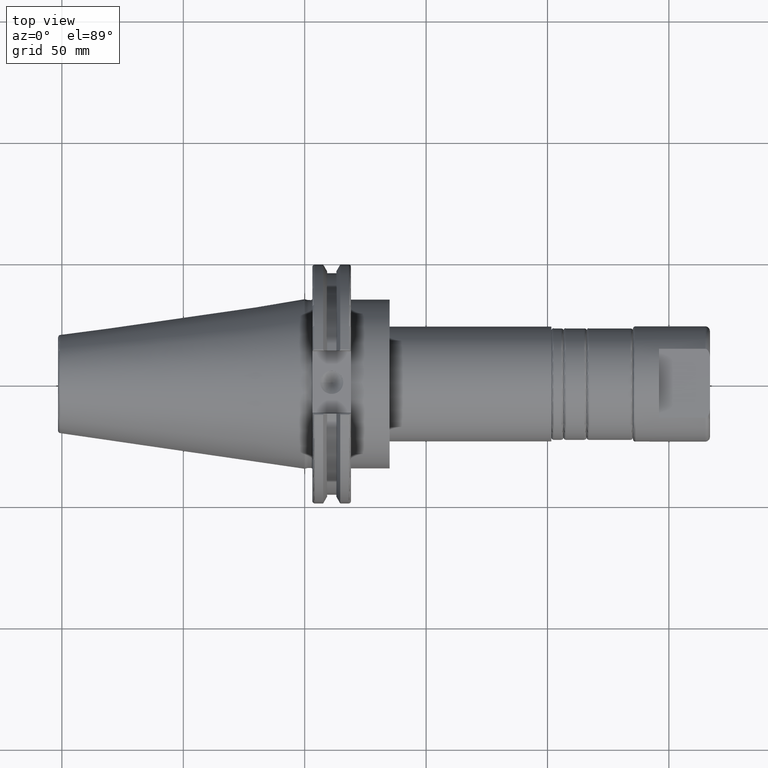
[diagram: clean part render]
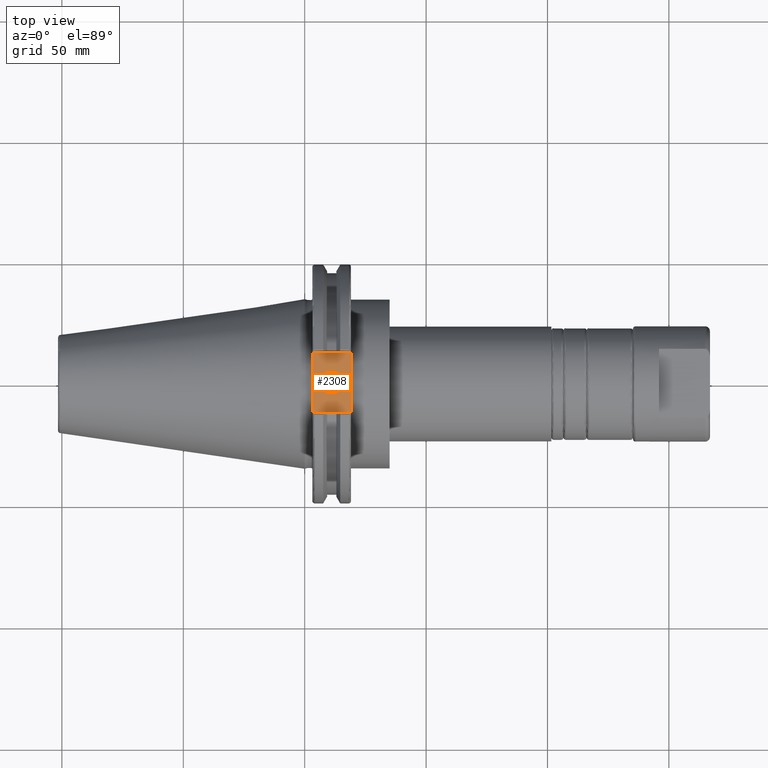
[diagram: same view with one face highlighted and labeled with its STEP entity id]
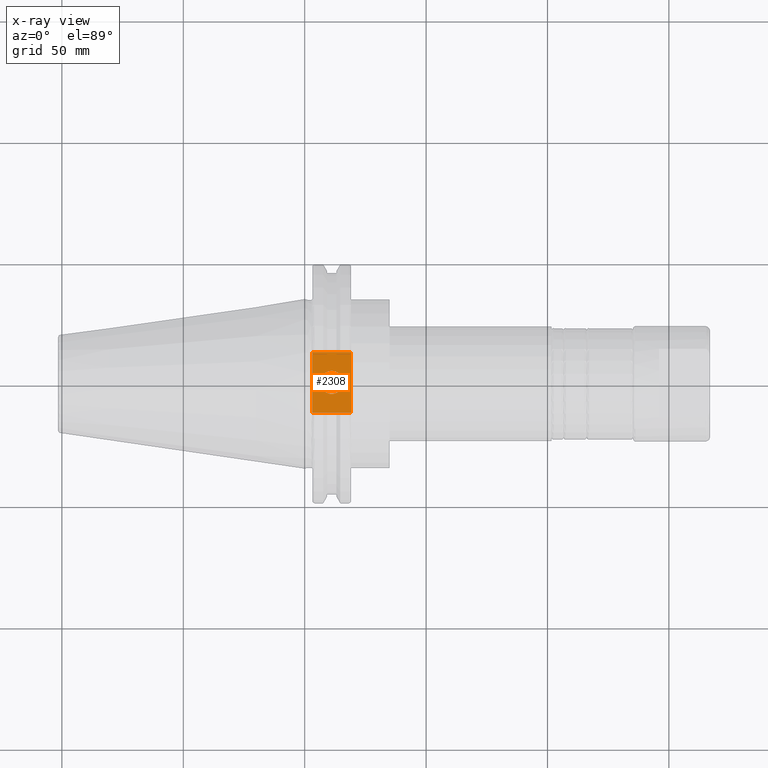
[diagram: x-ray of the same camera — body ghosted, the highlighted face saturated]
A machine part, top view. The second image highlights one B-rep face of the part: STEP entity #2308.
The next image is the same camera in x-ray: the body ghosted, the highlighted face saturated — about 0% of this face is hidden behind the body in this view.
In plain terms, the highlighted planar face has unit normal (0, 0, 1).
Its self-contained STEP definition (entity closure, byte-faithful):
#559=FACE_BOUND('',#904,.T.);
#608=CIRCLE('',#2647,4.7625);
#786=FACE_OUTER_BOUND('',#903,.T.);
#903=EDGE_LOOP('',(#1966,#1967,#1968,#1969));
#904=EDGE_LOOP('',(#1970));
#980=LINE('',#3731,#1110);
#999=LINE('',#3828,#1129);
#1024=LINE('',#4016,#1154);
#1026=LINE('',#4019,#1156);
#1110=VECTOR('',#2960,10.);
#1129=VECTOR('',#2997,10.);
#1154=VECTOR('',#3076,10.);
#1156=VECTOR('',#3080,10.);
#1249=VERTEX_POINT('',#3728);
#1250=VERTEX_POINT('',#3730);
#1275=VERTEX_POINT('',#3825);
#1276=VERTEX_POINT('',#3827);
#1326=VERTEX_POINT('',#4076);
#1436=EDGE_CURVE('',#1249,#1250,#980,.T.);
#1467=EDGE_CURVE('',#1275,#1276,#999,.T.);
#1521=EDGE_CURVE('',#1276,#1249,#1024,.T.);
#1523=EDGE_CURVE('',#1250,#1275,#1026,.T.);
#1545=EDGE_CURVE('',#1326,#1326,#608,.T.);
#1966=ORIENTED_EDGE('',*,*,#1521,.F.);
#1967=ORIENTED_EDGE('',*,*,#1467,.F.);
#1968=ORIENTED_EDGE('',*,*,#1523,.F.);
#1969=ORIENTED_EDGE('',*,*,#1436,.F.);
#1970=ORIENTED_EDGE('',*,*,#1545,.T.);
#2220=PLANE('',#2664);
#2308=ADVANCED_FACE('',(#786,#559),#2220,.T.);
#2647=AXIS2_PLACEMENT_3D('',#4077,#3123,#3124);
#2664=AXIS2_PLACEMENT_3D('',#4095,#3158,#3159);
#2960=DIRECTION('',(0.,1.,0.));
#2997=DIRECTION('',(0.,-1.,0.));
#3076=DIRECTION('',(-1.,1.31581988103722E-16,0.));
#3080=DIRECTION('',(1.,0.,0.));
#3123=DIRECTION('center_axis',(0.,0.,-1.));
#3124=DIRECTION('ref_axis',(1.,0.,0.));
#3158=DIRECTION('center_axis',(0.,0.,1.));
#3159=DIRECTION('ref_axis',(1.,0.,0.));
#3728=CARTESIAN_POINT('',(3.175,-12.45,37.719));
#3730=CARTESIAN_POINT('',(3.175,12.45,37.719));
#3731=CARTESIAN_POINT('',(3.175,24.60625,37.719));
#3825=CARTESIAN_POINT('',(19.05,12.45,37.719));
#3827=CARTESIAN_POINT('',(19.05,-12.45,37.719));
#3828=CARTESIAN_POINT('',(19.05,0.,37.719));
#4016=CARTESIAN_POINT('',(10.63125,-12.45,37.719));
#4019=CARTESIAN_POINT('',(19.06875,12.45,37.719));
#4076=CARTESIAN_POINT('',(6.36479999999999,-5.83238038093927E-16,37.719));
#4077=CARTESIAN_POINT('Origin',(11.1273,0.,37.719));
#4095=CARTESIAN_POINT('Origin',(18.0875,0.,37.719));